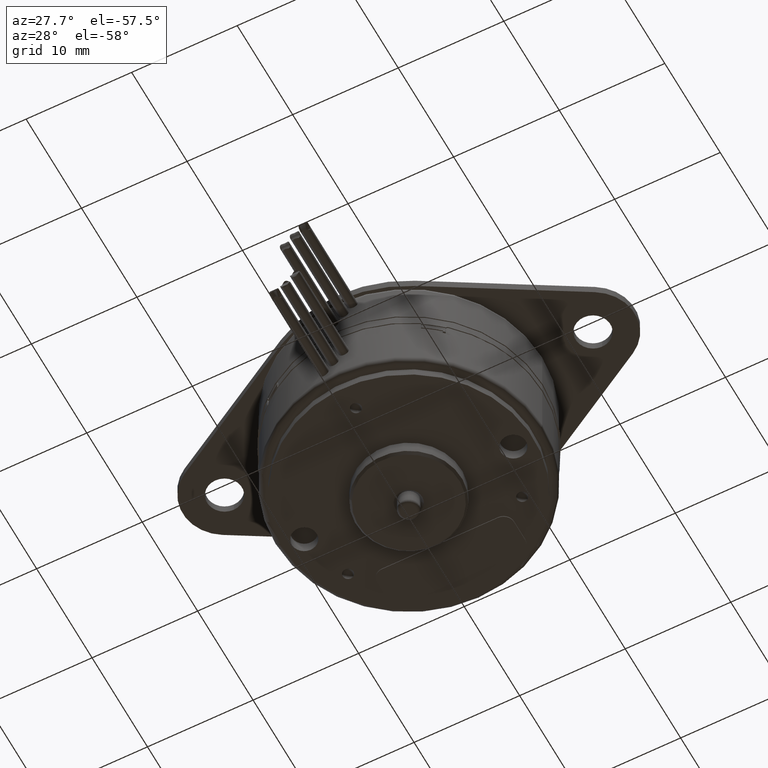
[diagram: clean part render]
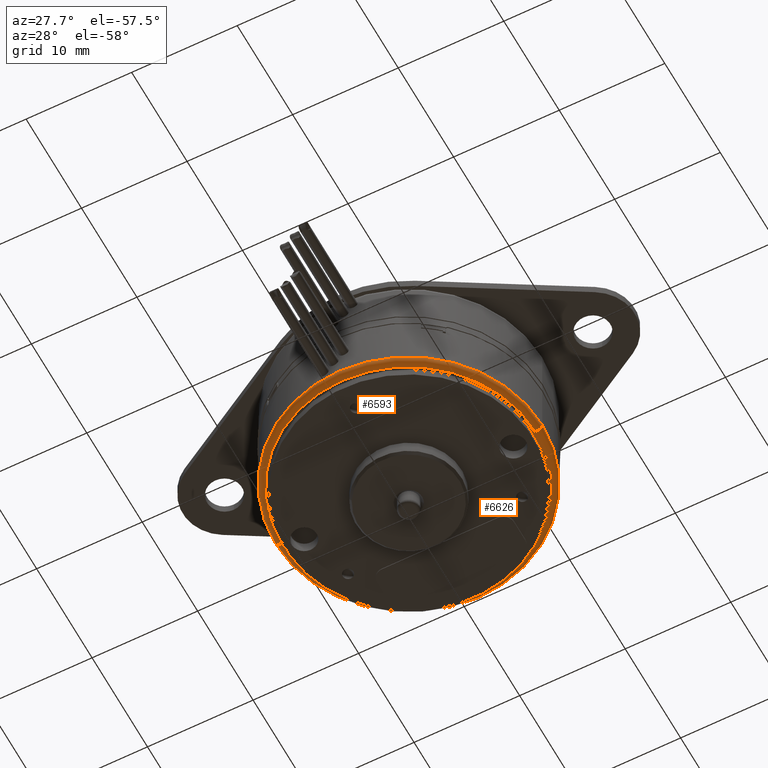
[diagram: same view with one multi-face feature highlighted, each face labeled with its STEP entity id]
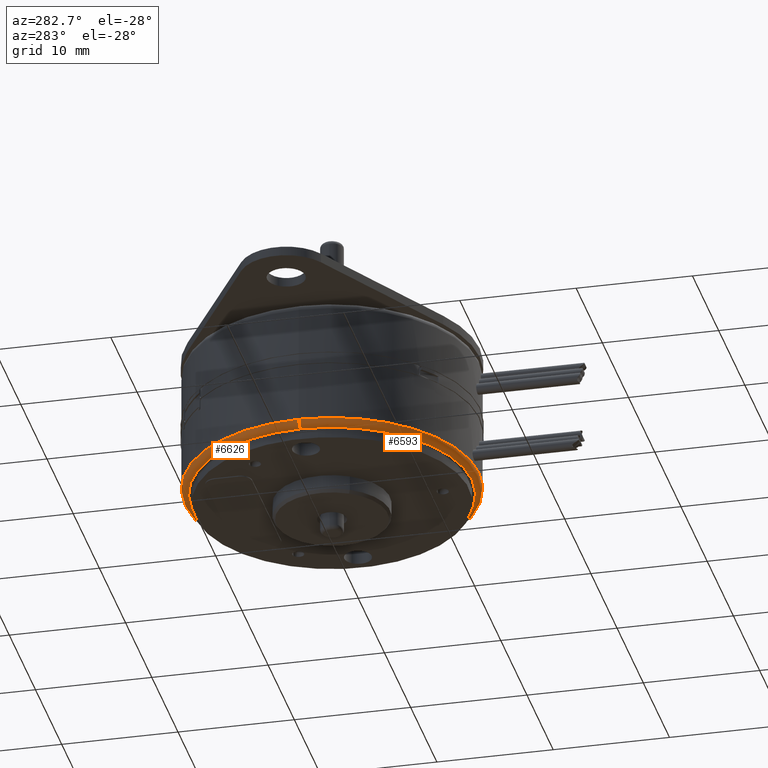
[diagram: same view with one multi-face feature highlighted, each face labeled with its STEP entity id]
A machine part, auxiliary view. The highlighted faces form ONE feature: a constant-radius fillet chain: 2 tangent blend faces with common blend radius 0.5994 mm. The faces share edges in the B-rep.
A second angle (auxiliary view) of the same feature is appended — it is thin or edge-on in the first view.
Their STEP definitions:
[1] entity #6593 (Torus):
#1579=CARTESIAN_POINT('',(0.E0,0.E0,-2.044E-1));
#1580=DIRECTION('',(0.E0,0.E0,-1.E0));
#1581=DIRECTION('',(1.E0,5.043628777098E-13,0.E0));
#1582=AXIS2_PLACEMENT_3D('',#1579,#1580,#1581);
#1626=CARTESIAN_POINT('',(0.E0,0.E0,-2.28E-1));
#1627=DIRECTION('',(0.E0,0.E0,-1.E0));
#1628=DIRECTION('',(-9.999813969020E-1,-6.099659826950E-3,0.E0));
#1629=AXIS2_PLACEMENT_3D('',#1626,#1627,#1628);
#1636=CARTESIAN_POINT('',(0.E0,0.E0,-2.28E-1));
#1637=DIRECTION('',(0.E0,0.E0,1.E0));
#1638=DIRECTION('',(-9.999813969020E-1,-6.099659826950E-3,0.E0));
#1639=AXIS2_PLACEMENT_3D('',#1636,#1637,#1638);
#1656=CARTESIAN_POINT('',(4.739999999999E-1,8.572530706130E-13,-2.044E-1));
#1657=DIRECTION('',(1.808549837667E-12,-1.E0,0.E0));
#1658=DIRECTION('',(0.E0,0.E0,-1.E0));
#1659=AXIS2_PLACEMENT_3D('',#1656,#1657,#1658);
#1661=CARTESIAN_POINT('',(-4.739999999999E-1,-1.071894309423E-13,-2.044E-1));
#1662=DIRECTION('',(2.261376849666E-13,-1.E0,0.E0));
#1663=DIRECTION('',(-1.E0,-2.261376849666E-13,0.E0));
#1664=AXIS2_PLACEMENT_3D('',#1661,#1662,#1663);
#3859=CARTESIAN_POINT('',(-4.975999999999E-1,-5.630315778694E-14,-2.044E-1));
#3860=VERTEX_POINT('',#3859);
#3861=CARTESIAN_POINT('',(4.975999999999E-1,5.756031831639E-13,-2.044E-1));
#3862=VERTEX_POINT('',#3861);
#3894=CARTESIAN_POINT('',(-4.739911821314E-1,-2.891238757974E-3,-2.28E-1));
#3895=CARTESIAN_POINT('',(-4.739999985998E-1,3.643181068265E-5,-2.28E-1));
#3896=VERTEX_POINT('',#3894);
#3897=VERTEX_POINT('',#3895);
#3898=CARTESIAN_POINT('',(4.739999985998E-1,-3.643181068256E-5,-2.28E-1));
#3899=VERTEX_POINT('',#3898);
#6577=CARTESIAN_POINT('',(0.E0,0.E0,-2.044E-1));
#6578=DIRECTION('',(0.E0,0.E0,1.E0));
#6579=DIRECTION('',(9.999804093505E-1,6.259466053443E-3,0.E0));
#6580=AXIS2_PLACEMENT_3D('',#6577,#6578,#6579);
#6581=TOROIDAL_SURFACE('',#6580,4.739999999999E-1,2.36E-2);
#6583=ORIENTED_EDGE('',*,*,#6582,.F.);
#6585=ORIENTED_EDGE('',*,*,#6584,.T.);
#6587=ORIENTED_EDGE('',*,*,#6586,.F.);
#6588=ORIENTED_EDGE('',*,*,#6542,.F.);
#6590=ORIENTED_EDGE('',*,*,#6589,.F.);
#6591=EDGE_LOOP('',(#6583,#6585,#6587,#6588,#6590));
#6592=FACE_OUTER_BOUND('',#6591,.F.);
#6593=ADVANCED_FACE('',(#6592),#6581,.T.);
#1583=CIRCLE('',#1582,4.976E-1);
#1630=CIRCLE('',#1629,4.739999999999E-1);
#1640=CIRCLE('',#1639,4.739999999999E-1);
#1660=CIRCLE('',#1659,2.36E-2);
#1665=CIRCLE('',#1664,2.36E-2);
#6542=EDGE_CURVE('',#3862,#3860,#1583,.T.);
#6582=EDGE_CURVE('',#3896,#3899,#1640,.T.);
#6584=EDGE_CURVE('',#3896,#3897,#1630,.T.);
#6586=EDGE_CURVE('',#3860,#3897,#1665,.T.);
#6589=EDGE_CURVE('',#3899,#3862,#1660,.T.);
[2] entity #6626 (Torus):
#1320=CARTESIAN_POINT('',(0.E0,0.E0,-2.044E-1));
#1321=DIRECTION('',(0.E0,0.E0,-1.E0));
#1322=DIRECTION('',(-1.E0,0.E0,0.E0));
#1323=AXIS2_PLACEMENT_3D('',#1320,#1321,#1322);
#1631=CARTESIAN_POINT('',(0.E0,0.E0,-2.28E-1));
#1632=DIRECTION('',(0.E0,0.E0,1.E0));
#1633=DIRECTION('',(9.999813969020E-1,6.099659826950E-3,0.E0));
#1634=AXIS2_PLACEMENT_3D('',#1631,#1632,#1633);
#1651=CARTESIAN_POINT('',(0.E0,0.E0,-2.28E-1));
#1652=DIRECTION('',(0.E0,0.E0,-1.E0));
#1653=DIRECTION('',(9.999813969020E-1,6.099659826950E-3,0.E0));
#1654=AXIS2_PLACEMENT_3D('',#1651,#1652,#1653);
#1656=CARTESIAN_POINT('',(4.739999999999E-1,8.572530706130E-13,-2.044E-1));
#1657=DIRECTION('',(1.808549837667E-12,-1.E0,0.E0));
#1658=DIRECTION('',(0.E0,0.E0,-1.E0));
#1659=AXIS2_PLACEMENT_3D('',#1656,#1657,#1658);
#1661=CARTESIAN_POINT('',(-4.739999999999E-1,-1.071894309423E-13,-2.044E-1));
#1662=DIRECTION('',(2.261376849666E-13,-1.E0,0.E0));
#1663=DIRECTION('',(-1.E0,-2.261376849666E-13,0.E0));
#1664=AXIS2_PLACEMENT_3D('',#1661,#1662,#1663);
#3859=CARTESIAN_POINT('',(-4.975999999999E-1,-5.630315778694E-14,-2.044E-1));
#3860=VERTEX_POINT('',#3859);
#3861=CARTESIAN_POINT('',(4.975999999999E-1,5.756031831639E-13,-2.044E-1));
#3862=VERTEX_POINT('',#3861);
#3895=CARTESIAN_POINT('',(-4.739999985998E-1,3.643181068265E-5,-2.28E-1));
#3897=VERTEX_POINT('',#3895);
#3898=CARTESIAN_POINT('',(4.739999985998E-1,-3.643181068256E-5,-2.28E-1));
#3899=VERTEX_POINT('',#3898);
#3900=CARTESIAN_POINT('',(4.739911821314E-1,2.891238757974E-3,-2.28E-1));
#3901=VERTEX_POINT('',#3900);
#6614=CARTESIAN_POINT('',(0.E0,0.E0,-2.044E-1));
#6615=DIRECTION('',(0.E0,0.E0,1.E0));
#6616=DIRECTION('',(-9.999804093505E-1,-6.259466053443E-3,0.E0));
#6617=AXIS2_PLACEMENT_3D('',#6614,#6615,#6616);
#6618=TOROIDAL_SURFACE('',#6617,4.739999999999E-1,2.36E-2);
#6619=ORIENTED_EDGE('',*,*,#6601,.F.);
#6620=ORIENTED_EDGE('',*,*,#6599,.T.);
#6621=ORIENTED_EDGE('',*,*,#6589,.T.);
#6622=ORIENTED_EDGE('',*,*,#6215,.F.);
#6623=ORIENTED_EDGE('',*,*,#6586,.T.);
#6624=EDGE_LOOP('',(#6619,#6620,#6621,#6622,#6623));
#6625=FACE_OUTER_BOUND('',#6624,.F.);
#6626=ADVANCED_FACE('',(#6625),#6618,.T.);
#1324=CIRCLE('',#1323,4.976E-1);
#1635=CIRCLE('',#1634,4.739999999999E-1);
#1655=CIRCLE('',#1654,4.739999999999E-1);
#1660=CIRCLE('',#1659,2.36E-2);
#1665=CIRCLE('',#1664,2.36E-2);
#6215=EDGE_CURVE('',#3860,#3862,#1324,.T.);
#6586=EDGE_CURVE('',#3860,#3897,#1665,.T.);
#6589=EDGE_CURVE('',#3899,#3862,#1660,.T.);
#6599=EDGE_CURVE('',#3901,#3899,#1655,.T.);
#6601=EDGE_CURVE('',#3901,#3897,#1635,.T.);